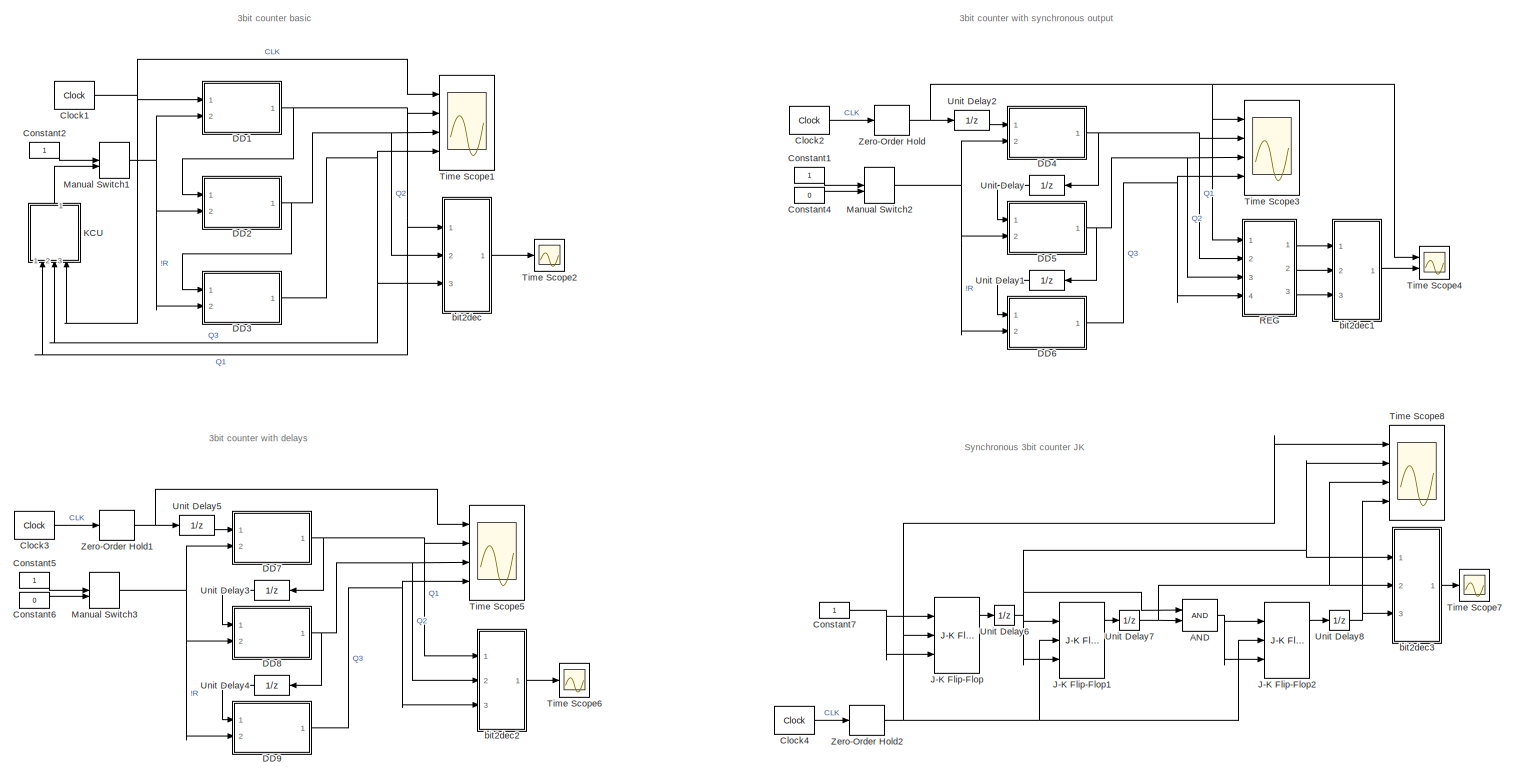
[diagram: root canvas - part 1/1, most of the canvas]
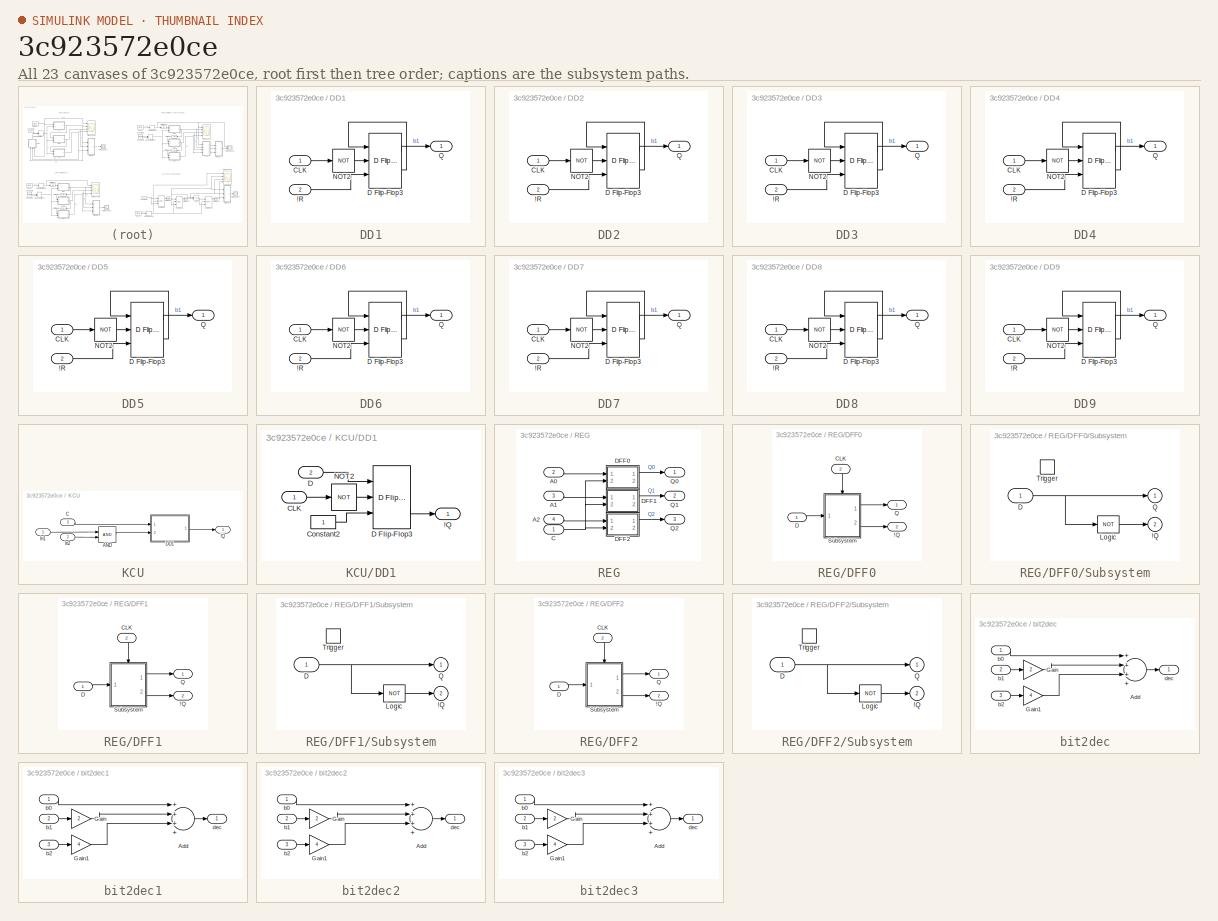
[diagram: thumbnail index - all 23 canvases of the model, root first then tree order]
MODEL slx_3c923572e0ce
KIND model
CONFIG AbsTol = auto
CONFIG EnableMultiTasking = off
CONFIG FixedStep = 1
CONFIG MaxStep = 1
CONFIG MinStep = auto
CONFIG RelTol = 1e-3
CONFIG SampleTimeConstraint = Unconstrained
CONFIG Solver = FixedStepAuto
CONFIG SolverName = FixedStepAuto
CONFIG StartTime = 0.0
CONFIG StopTime = 100
BLOCK [Logic] AND
  AllPortsSameDT = off
  IconShape = distinctive
  OutDataTypeStr = boolean
  Ports = [2, 1]
BLOCK [Reference] Clock1  REF=simulink_extras/Flip Flops/Clock
  Ports = [0, 1]
  SourceBlock = simulink_extras/Flip Flops/Clock
  SourceProductBaseCode = SL
  SourceProductName = Simulink
  SourceType = Digital clock
BLOCK [Reference] Clock2  REF=simulink_extras/Flip Flops/Clock
  Ports = [0, 1]
  SourceBlock = simulink_extras/Flip Flops/Clock
  SourceProductBaseCode = SL
  SourceProductName = Simulink
  SourceType = Digital clock
BLOCK [Reference] Clock3  REF=simulink_extras/Flip Flops/Clock
  Ports = [0, 1]
  SourceBlock = simulink_extras/Flip Flops/Clock
  SourceProductBaseCode = SL
  SourceProductName = Simulink
  SourceType = Digital clock
BLOCK [Reference] Clock4  REF=simulink_extras/Flip Flops/Clock
  Ports = [0, 1]
  SourceBlock = simulink_extras/Flip Flops/Clock
  SourceProductBaseCode = SL
  SourceProductName = Simulink
  SourceType = Digital clock
BLOCK [Constant] Constant1
  OutDataTypeStr = boolean
BLOCK [Constant] Constant2
  OutDataTypeStr = boolean
BLOCK [Constant] Constant4
  OutDataTypeStr = boolean
  Value = 0
BLOCK [Constant] Constant5
  OutDataTypeStr = boolean
BLOCK [Constant] Constant6
  OutDataTypeStr = boolean
  Value = 0
BLOCK [Constant] Constant7
  OutDataTypeStr = boolean
BLOCK [SubSystem] DD1
  Ports = [2, 1]
  RequestExecContextInheritance = off
BLOCK [Inport] DD1/!R
  IconDisplay = Port number
  Port = 2
BLOCK [Inport] DD1/CLK
  IconDisplay = Port number
BLOCK [Reference] DD1/D Flip-Flop3  REF=simulink_extras/Flip Flops/D Flip-Flop
  Ports = [3, 2]
  SourceBlock = simulink_extras/Flip Flops/D Flip-Flop
  SourceProductBaseCode = SL
  SourceProductName = Simulink
  SourceType = DFlipFlop
BLOCK [Logic] DD1/NOT2
  AllPortsSameDT = off
  IconShape = distinctive
  Operator = NOT
  OutDataTypeStr = boolean
  Ports = [1, 1]
BLOCK [Outport] DD1/Q
  IconDisplay = Port number
BLOCK [SubSystem] DD2
  Ports = [2, 1]
  RequestExecContextInheritance = off
BLOCK [Inport] DD2/!R
  IconDisplay = Port number
  Port = 2
BLOCK [Inport] DD2/CLK
  IconDisplay = Port number
BLOCK [Reference] DD2/D Flip-Flop3  REF=simulink_extras/Flip Flops/D Flip-Flop
  Ports = [3, 2]
  SourceBlock = simulink_extras/Flip Flops/D Flip-Flop
  SourceProductBaseCode = SL
  SourceProductName = Simulink
  SourceType = DFlipFlop
BLOCK [Logic] DD2/NOT2
  AllPortsSameDT = off
  IconShape = distinctive
  Operator = NOT
  OutDataTypeStr = boolean
  Ports = [1, 1]
BLOCK [Outport] DD2/Q
  IconDisplay = Port number
BLOCK [SubSystem] DD3
  Ports = [2, 1]
  RequestExecContextInheritance = off
BLOCK [Inport] DD3/!R
  IconDisplay = Port number
  Port = 2
BLOCK [Inport] DD3/CLK
  IconDisplay = Port number
BLOCK [Reference] DD3/D Flip-Flop3  REF=simulink_extras/Flip Flops/D Flip-Flop
  Ports = [3, 2]
  SourceBlock = simulink_extras/Flip Flops/D Flip-Flop
  SourceProductBaseCode = SL
  SourceProductName = Simulink
  SourceType = DFlipFlop
BLOCK [Logic] DD3/NOT2
  AllPortsSameDT = off
  IconShape = distinctive
  Operator = NOT
  OutDataTypeStr = boolean
  Ports = [1, 1]
BLOCK [Outport] DD3/Q
  IconDisplay = Port number
BLOCK [SubSystem] DD4
  Ports = [2, 1]
  RequestExecContextInheritance = off
BLOCK [Inport] DD4/!R
  IconDisplay = Port number
  Port = 2
BLOCK [Inport] DD4/CLK
  IconDisplay = Port number
BLOCK [Reference] DD4/D Flip-Flop3  REF=simulink_extras/Flip Flops/D Flip-Flop
  Ports = [3, 2]
  SourceBlock = simulink_extras/Flip Flops/D Flip-Flop
  SourceProductBaseCode = SL
  SourceProductName = Simulink
  SourceType = DFlipFlop
BLOCK [Logic] DD4/NOT2
  AllPortsSameDT = off
  IconShape = distinctive
  Operator = NOT
  OutDataTypeStr = boolean
  Ports = [1, 1]
BLOCK [Outport] DD4/Q
  IconDisplay = Port number
BLOCK [SubSystem] DD5
  Ports = [2, 1]
  RequestExecContextInheritance = off
BLOCK [Inport] DD5/!R
  IconDisplay = Port number
  Port = 2
BLOCK [Inport] DD5/CLK
  IconDisplay = Port number
BLOCK [Reference] DD5/D Flip-Flop3  REF=simulink_extras/Flip Flops/D Flip-Flop
  Ports = [3, 2]
  SourceBlock = simulink_extras/Flip Flops/D Flip-Flop
  SourceProductBaseCode = SL
  SourceProductName = Simulink
  SourceType = DFlipFlop
BLOCK [Logic] DD5/NOT2
  AllPortsSameDT = off
  IconShape = distinctive
  Operator = NOT
  OutDataTypeStr = boolean
  Ports = [1, 1]
BLOCK [Outport] DD5/Q
  IconDisplay = Port number
BLOCK [SubSystem] DD6
  Ports = [2, 1]
  RequestExecContextInheritance = off
BLOCK [Inport] DD6/!R
  IconDisplay = Port number
  Port = 2
BLOCK [Inport] DD6/CLK
  IconDisplay = Port number
BLOCK [Reference] DD6/D Flip-Flop3  REF=simulink_extras/Flip Flops/D Flip-Flop
  Ports = [3, 2]
  SourceBlock = simulink_extras/Flip Flops/D Flip-Flop
  SourceProductBaseCode = SL
  SourceProductName = Simulink
  SourceType = DFlipFlop
BLOCK [Logic] DD6/NOT2
  AllPortsSameDT = off
  IconShape = distinctive
  Operator = NOT
  OutDataTypeStr = boolean
  Ports = [1, 1]
BLOCK [Outport] DD6/Q
  IconDisplay = Port number
BLOCK [SubSystem] DD7
  Ports = [2, 1]
  RequestExecContextInheritance = off
BLOCK [Inport] DD7/!R
  IconDisplay = Port number
  Port = 2
BLOCK [Inport] DD7/CLK
  IconDisplay = Port number
BLOCK [Reference] DD7/D Flip-Flop3  REF=simulink_extras/Flip Flops/D Flip-Flop
  Ports = [3, 2]
  SourceBlock = simulink_extras/Flip Flops/D Flip-Flop
  SourceProductBaseCode = SL
  SourceProductName = Simulink
  SourceType = DFlipFlop
BLOCK [Logic] DD7/NOT2
  AllPortsSameDT = off
  IconShape = distinctive
  Operator = NOT
  OutDataTypeStr = boolean
  Ports = [1, 1]
BLOCK [Outport] DD7/Q
  IconDisplay = Port number
BLOCK [SubSystem] DD8
  Ports = [2, 1]
  RequestExecContextInheritance = off
BLOCK [Inport] DD8/!R
  IconDisplay = Port number
  Port = 2
BLOCK [Inport] DD8/CLK
  IconDisplay = Port number
BLOCK [Reference] DD8/D Flip-Flop3  REF=simulink_extras/Flip Flops/D Flip-Flop
  Ports = [3, 2]
  SourceBlock = simulink_extras/Flip Flops/D Flip-Flop
  SourceProductBaseCode = SL
  SourceProductName = Simulink
  SourceType = DFlipFlop
BLOCK [Logic] DD8/NOT2
  AllPortsSameDT = off
  IconShape = distinctive
  Operator = NOT
  OutDataTypeStr = boolean
  Ports = [1, 1]
BLOCK [Outport] DD8/Q
  IconDisplay = Port number
BLOCK [SubSystem] DD9
  Ports = [2, 1]
  RequestExecContextInheritance = off
BLOCK [Inport] DD9/!R
  IconDisplay = Port number
  Port = 2
BLOCK [Inport] DD9/CLK
  IconDisplay = Port number
BLOCK [Reference] DD9/D Flip-Flop3  REF=simulink_extras/Flip Flops/D Flip-Flop
  Ports = [3, 2]
  SourceBlock = simulink_extras/Flip Flops/D Flip-Flop
  SourceProductBaseCode = SL
  SourceProductName = Simulink
  SourceType = DFlipFlop
BLOCK [Logic] DD9/NOT2
  AllPortsSameDT = off
  IconShape = distinctive
  Operator = NOT
  OutDataTypeStr = boolean
  Ports = [1, 1]
BLOCK [Outport] DD9/Q
  IconDisplay = Port number
BLOCK [Reference] J-K Flip-Flop  REF=simulink_extras/Flip Flops/J-K
Flip-Flop
  Ports = [3, 2]
  SourceBlock = simulink_extras/Flip Flops/J-K\nFlip-Flop
  SourceProductBaseCode = SL
  SourceProductName = Simulink
  SourceType = JKFlipFlop
BLOCK [Reference] J-K Flip-Flop1  REF=simulink_extras/Flip Flops/J-K
Flip-Flop
  Ports = [3, 2]
  SourceBlock = simulink_extras/Flip Flops/J-K\nFlip-Flop
  SourceProductBaseCode = SL
  SourceProductName = Simulink
  SourceType = JKFlipFlop
BLOCK [Reference] J-K Flip-Flop2  REF=simulink_extras/Flip Flops/J-K
Flip-Flop
  Ports = [3, 2]
  SourceBlock = simulink_extras/Flip Flops/J-K\nFlip-Flop
  SourceProductBaseCode = SL
  SourceProductName = Simulink
  SourceType = JKFlipFlop
BLOCK [SubSystem] KCU
  Ports = [3, 1]
  RequestExecContextInheritance = off
BLOCK [Outport] KCU/!Q
  IconDisplay = Port number
BLOCK [Logic] KCU/AND
  AllPortsSameDT = off
  IconShape = distinctive
  OutDataTypeStr = boolean
  Ports = [2, 1]
BLOCK [Inport] KCU/C
  IconDisplay = Port number
  Port = 3
BLOCK [SubSystem] KCU/DD1
  Ports = [2, 1]
  RequestExecContextInheritance = off
BLOCK [Outport] KCU/DD1/!Q
  IconDisplay = Port number
BLOCK [Inport] KCU/DD1/CLK
  IconDisplay = Port number
BLOCK [Constant] KCU/DD1/Constant2
  OutDataTypeStr = boolean
BLOCK [Inport] KCU/DD1/D
  IconDisplay = Port number
  Port = 2
BLOCK [Reference] KCU/DD1/D Flip-Flop3  REF=simulink_extras/Flip Flops/D Flip-Flop
  Ports = [3, 2]
  SourceBlock = simulink_extras/Flip Flops/D Flip-Flop
  SourceProductBaseCode = SL
  SourceProductName = Simulink
  SourceType = DFlipFlop
BLOCK [Logic] KCU/DD1/NOT2
  AllPortsSameDT = off
  IconShape = distinctive
  Operator = NOT
  OutDataTypeStr = boolean
  Ports = [1, 1]
BLOCK [Inport] KCU/In1
  IconDisplay = Port number
BLOCK [Inport] KCU/In2
  IconDisplay = Port number
  Port = 2
BLOCK [ManualSwitch] Manual Switch1
  CurrentSetting = 0
BLOCK [ManualSwitch] Manual Switch2
BLOCK [ManualSwitch] Manual Switch3
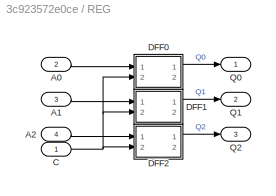
BLOCK [SubSystem] REG
  Ports = [4, 3]
  RequestExecContextInheritance = off
BLOCK [Inport] REG/A0
  IconDisplay = Port number
  Port = 2
BLOCK [Inport] REG/A1
  IconDisplay = Port number
  Port = 3
BLOCK [Inport] REG/A2
  IconDisplay = Port number
  Port = 4
BLOCK [Inport] REG/C
  IconDisplay = Port number
BLOCK [SubSystem] REG/DFF0
  Ports = [2, 2]
  RequestExecContextInheritance = off
BLOCK [Outport] REG/DFF0/!Q
  IconDisplay = Port number
  InitialOutput = 1
  Port = 2
  VectorParamsAs1DForOutWhenUnconnected = off
BLOCK [Inport] REG/DFF0/CLK
  IconDisplay = Port number
  Port = 2
BLOCK [Inport] REG/DFF0/D
  IconDisplay = Port number
BLOCK [Outport] REG/DFF0/Q
  IconDisplay = Port number
  InitialOutput = 0
  VectorParamsAs1DForOutWhenUnconnected = off
BLOCK [SubSystem] REG/DFF0/Subsystem
  Ports = [1, 2, 0, 1]
  RequestExecContextInheritance = off
BLOCK [Outport] REG/DFF0/Subsystem/!Q
  IconDisplay = Port number
  InitialOutput = 1
  OutputWhenDisabled = reset
  Port = 2
  VectorParamsAs1DForOutWhenUnconnected = off
BLOCK [Inport] REG/DFF0/Subsystem/D
  IconDisplay = Port number
  LatchByDelayingOutsideSignal = on
BLOCK [Logic] REG/DFF0/Subsystem/Logic
  Inputs = 1
  Operator = NOT
  Ports = [1, 1]
BLOCK [Outport] REG/DFF0/Subsystem/Q
  IconDisplay = Port number
  InitialOutput = 0
  OutputWhenDisabled = reset
  VectorParamsAs1DForOutWhenUnconnected = off
BLOCK [TriggerPort] REG/DFF0/Subsystem/Trigger
  Ports = []
  StatesWhenEnabling = reset
  VariantControl = Variant
BLOCK [SubSystem] REG/DFF1
  Ports = [2, 2]
  RequestExecContextInheritance = off
BLOCK [Outport] REG/DFF1/!Q
  IconDisplay = Port number
  InitialOutput = 1
  Port = 2
  VectorParamsAs1DForOutWhenUnconnected = off
BLOCK [Inport] REG/DFF1/CLK
  IconDisplay = Port number
  Port = 2
BLOCK [Inport] REG/DFF1/D
  IconDisplay = Port number
BLOCK [Outport] REG/DFF1/Q
  IconDisplay = Port number
  InitialOutput = 0
  VectorParamsAs1DForOutWhenUnconnected = off
BLOCK [SubSystem] REG/DFF1/Subsystem
  Ports = [1, 2, 0, 1]
  RequestExecContextInheritance = off
BLOCK [Outport] REG/DFF1/Subsystem/!Q
  IconDisplay = Port number
  InitialOutput = 1
  OutputWhenDisabled = reset
  Port = 2
  VectorParamsAs1DForOutWhenUnconnected = off
BLOCK [Inport] REG/DFF1/Subsystem/D
  IconDisplay = Port number
  LatchByDelayingOutsideSignal = on
BLOCK [Logic] REG/DFF1/Subsystem/Logic
  Inputs = 1
  Operator = NOT
  Ports = [1, 1]
BLOCK [Outport] REG/DFF1/Subsystem/Q
  IconDisplay = Port number
  InitialOutput = 0
  OutputWhenDisabled = reset
  VectorParamsAs1DForOutWhenUnconnected = off
BLOCK [TriggerPort] REG/DFF1/Subsystem/Trigger
  Ports = []
  StatesWhenEnabling = reset
  VariantControl = Variant
BLOCK [SubSystem] REG/DFF2
  Ports = [2, 2]
  RequestExecContextInheritance = off
BLOCK [Outport] REG/DFF2/!Q
  IconDisplay = Port number
  InitialOutput = 1
  Port = 2
  VectorParamsAs1DForOutWhenUnconnected = off
BLOCK [Inport] REG/DFF2/CLK
  IconDisplay = Port number
  Port = 2
BLOCK [Inport] REG/DFF2/D
  IconDisplay = Port number
BLOCK [Outport] REG/DFF2/Q
  IconDisplay = Port number
  InitialOutput = 0
  VectorParamsAs1DForOutWhenUnconnected = off
BLOCK [SubSystem] REG/DFF2/Subsystem
  Ports = [1, 2, 0, 1]
  RequestExecContextInheritance = off
BLOCK [Outport] REG/DFF2/Subsystem/!Q
  IconDisplay = Port number
  InitialOutput = 1
  OutputWhenDisabled = reset
  Port = 2
  VectorParamsAs1DForOutWhenUnconnected = off
BLOCK [Inport] REG/DFF2/Subsystem/D
  IconDisplay = Port number
  LatchByDelayingOutsideSignal = on
BLOCK [Logic] REG/DFF2/Subsystem/Logic
  Inputs = 1
  Operator = NOT
  Ports = [1, 1]
BLOCK [Outport] REG/DFF2/Subsystem/Q
  IconDisplay = Port number
  InitialOutput = 0
  OutputWhenDisabled = reset
  VectorParamsAs1DForOutWhenUnconnected = off
BLOCK [TriggerPort] REG/DFF2/Subsystem/Trigger
  Ports = []
  StatesWhenEnabling = reset
  VariantControl = Variant
BLOCK [Outport] REG/Q0
  IconDisplay = Port number
BLOCK [Outport] REG/Q1
  IconDisplay = Port number
  Port = 2
BLOCK [Outport] REG/Q2
  IconDisplay = Port number
  Port = 3
BLOCK [Scope] Time Scope1
  DefaultConfigurationName = spbscopes.TimeScopeBlockCfg
  Floating = off
  NumInputPorts = 4
  Ports = [4]
  ScopeSpecificationString = spbscopes.TimeScopeBlockCfg('CurrentConfiguration', extmgr.ConfigurationSet(extmgr.Configuration('Core','General UI',true),extmgr.Configuration('Core','Source UI',true),extmgr.Configuration('Sources','WiredSimulink',true,'DataLoggingVariableName','ScopeData1'),extmgr.Configuration('Visuals','Time Domain',true,'DisplayLayoutDimensions',[4 1],'DisplayPropertyDefaults',struct('YLabelReal','Amplitude'...<+3419ch>
  UserDataPersistent = on
BLOCK [Scope] Time Scope2
  DefaultConfigurationName = spbscopes.TimeScopeBlockCfg
  Floating = off
  NumInputPorts = 1
  Ports = [1]
  ScopeSpecificationString = spbscopes.TimeScopeBlockCfg('CurrentConfiguration', extmgr.ConfigurationSet(extmgr.Configuration('Core','General UI',true),extmgr.Configuration('Core','Source UI',true),extmgr.Configuration('Sources','WiredSimulink',true,'DataLoggingVariableName','ScopeData2'),extmgr.Configuration('Visuals','Time Domain',true,'DisplayPropertyDefaults',struct('MinYLimReal','-0.625','MaxYLimReal','5.625','YLabelReal...<+1421ch>
  UserDataPersistent = on
BLOCK [Scope] Time Scope3
  DefaultConfigurationName = spbscopes.TimeScopeBlockCfg
  Floating = off
  NumInputPorts = 4
  Ports = [4]
  ScopeSpecificationString = spbscopes.TimeScopeBlockCfg('CurrentConfiguration', extmgr.ConfigurationSet(extmgr.Configuration('Core','General UI',true),extmgr.Configuration('Core','Source UI',true),extmgr.Configuration('Sources','WiredSimulink',true),extmgr.Configuration('Visuals','Time Domain',true,'DisplayLayoutDimensions',[4 1],'DisplayPropertyDefaults',struct('YLabelReal','Amplitude','AxesColor',[0 0 0],'ColorOrder',[1 1 ...<+3392ch>
  UserDataPersistent = on
BLOCK [Scope] Time Scope4
  DefaultConfigurationName = spbscopes.TimeScopeBlockCfg
  Floating = off
  NumInputPorts = 2
  Ports = [2]
  ScopeSpecificationString = spbscopes.TimeScopeBlockCfg('CurrentConfiguration', extmgr.ConfigurationSet(extmgr.Configuration('Core','General UI',true),extmgr.Configuration('Core','Source UI',true),extmgr.Configuration('Sources','WiredSimulink',true,'DataLoggingVariableName','ScopeData3'),extmgr.Configuration('Visuals','Time Domain',true,'DisplayLayoutDimensions',[2 1],'DisplayPropertyDefaults',struct('YLabelReal','Amplitude'...<+2123ch>
  UserDataPersistent = on
BLOCK [Scope] Time Scope5
  DefaultConfigurationName = spbscopes.TimeScopeBlockCfg
  Floating = off
  NumInputPorts = 4
  Ports = [4]
  ScopeSpecificationString = spbscopes.TimeScopeBlockCfg('CurrentConfiguration', extmgr.ConfigurationSet(extmgr.Configuration('Core','General UI',true),extmgr.Configuration('Core','Source UI',true),extmgr.Configuration('Sources','WiredSimulink',true,'DataLoggingVariableName','ScopeData4'),extmgr.Configuration('Visuals','Time Domain',true,'DisplayLayoutDimensions',[4 1],'DisplayPropertyDefaults',struct('YLabelReal','Amplitude'...<+3446ch>
  UserDataPersistent = on
BLOCK [Scope] Time Scope6
  DefaultConfigurationName = spbscopes.TimeScopeBlockCfg
  Floating = off
  NumInputPorts = 1
  Ports = [1]
  ScopeSpecificationString = spbscopes.TimeScopeBlockCfg('CurrentConfiguration', extmgr.ConfigurationSet(extmgr.Configuration('Core','General UI',true),extmgr.Configuration('Core','Source UI',true),extmgr.Configuration('Sources','WiredSimulink',true,'DataLoggingVariableName','ScopeData5'),extmgr.Configuration('Visuals','Time Domain',true,'DisplayPropertyDefaults',struct('MinYLimReal','-0.875','MaxYLimReal','7.875','YLabelReal...<+1476ch>
  UserDataPersistent = on
BLOCK [Scope] Time Scope7
  DefaultConfigurationName = spbscopes.TimeScopeBlockCfg
  Floating = off
  NumInputPorts = 1
  Ports = [1]
  ScopeSpecificationString = spbscopes.TimeScopeBlockCfg('CurrentConfiguration', extmgr.ConfigurationSet(extmgr.Configuration('Core','General UI',true),extmgr.Configuration('Core','Source UI',true),extmgr.Configuration('Sources','WiredSimulink',true,'DataLoggingVariableName','ScopeData6'),extmgr.Configuration('Visuals','Time Domain',true,'DisplayPropertyDefaults',struct('MinYLimReal','-0.875','MaxYLimReal','7.875','YLabelReal...<+1422ch>
  UserDataPersistent = on
BLOCK [Scope] Time Scope8
  DefaultConfigurationName = spbscopes.TimeScopeBlockCfg
  Floating = off
  NumInputPorts = 4
  Ports = [4]
  ScopeSpecificationString = spbscopes.TimeScopeBlockCfg('CurrentConfiguration', extmgr.ConfigurationSet(extmgr.Configuration('Core','General UI',true),extmgr.Configuration('Core','Source UI',true),extmgr.Configuration('Sources','WiredSimulink',true,'DataLoggingVariableName','ScopeData7'),extmgr.Configuration('Visuals','Time Domain',true,'DisplayLayoutDimensions',[4 1],'DisplayPropertyDefaults',struct('YLabelReal','Amplitude'...<+3444ch>
  UserDataPersistent = on
BLOCK [UnitDelay] Unit Delay
  HasFrameUpgradeWarning = on
  SampleTime = -1
BLOCK [UnitDelay] Unit Delay1
  HasFrameUpgradeWarning = on
  SampleTime = -1
BLOCK [UnitDelay] Unit Delay2
  HasFrameUpgradeWarning = on
  SampleTime = -1
BLOCK [UnitDelay] Unit Delay3
  HasFrameUpgradeWarning = on
  SampleTime = -1
BLOCK [UnitDelay] Unit Delay4
  HasFrameUpgradeWarning = on
  SampleTime = -1
BLOCK [UnitDelay] Unit Delay5
  HasFrameUpgradeWarning = on
  SampleTime = -1
BLOCK [UnitDelay] Unit Delay6
  HasFrameUpgradeWarning = on
  SampleTime = -1
BLOCK [UnitDelay] Unit Delay7
  HasFrameUpgradeWarning = on
  SampleTime = -1
BLOCK [UnitDelay] Unit Delay8
  HasFrameUpgradeWarning = on
  SampleTime = -1
BLOCK [ZeroOrderHold] Zero-Order Hold
BLOCK [ZeroOrderHold] Zero-Order Hold1
BLOCK [ZeroOrderHold] Zero-Order Hold2
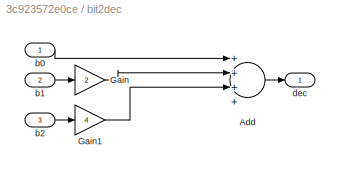
BLOCK [SubSystem] bit2dec
  Ports = [3, 1]
  RequestExecContextInheritance = off
BLOCK [Sum] bit2dec/Add
  InputSameDT = off
  Inputs = ++++
  OutDataTypeStr = Inherit: Inherit via internal rule
  Ports = [4, 1]
  SaturateOnIntegerOverflow = off
BLOCK [Gain] bit2dec/Gain
  Gain = 2
  OutDataTypeStr = Inherit: Inherit via internal rule
  ParamDataTypeStr = Inherit: Inherit via internal rule
  SaturateOnIntegerOverflow = off
BLOCK [Gain] bit2dec/Gain1
  Gain = 4
  OutDataTypeStr = Inherit: Inherit via internal rule
  ParamDataTypeStr = Inherit: Inherit via internal rule
  SaturateOnIntegerOverflow = off
BLOCK [Inport] bit2dec/b0
  IconDisplay = Port number
BLOCK [Inport] bit2dec/b1
  IconDisplay = Port number
  Port = 2
BLOCK [Inport] bit2dec/b2
  IconDisplay = Port number
  Port = 3
BLOCK [Outport] bit2dec/dec
  IconDisplay = Port number
BLOCK [SubSystem] bit2dec1
  Ports = [3, 1]
  RequestExecContextInheritance = off
BLOCK [Sum] bit2dec1/Add
  InputSameDT = off
  Inputs = ++++
  OutDataTypeStr = Inherit: Inherit via internal rule
  Ports = [4, 1]
  SaturateOnIntegerOverflow = off
BLOCK [Gain] bit2dec1/Gain
  Gain = 2
  OutDataTypeStr = Inherit: Inherit via internal rule
  ParamDataTypeStr = Inherit: Inherit via internal rule
  SaturateOnIntegerOverflow = off
BLOCK [Gain] bit2dec1/Gain1
  Gain = 4
  OutDataTypeStr = Inherit: Inherit via internal rule
  ParamDataTypeStr = Inherit: Inherit via internal rule
  SaturateOnIntegerOverflow = off
BLOCK [Inport] bit2dec1/b0
  IconDisplay = Port number
BLOCK [Inport] bit2dec1/b1
  IconDisplay = Port number
  Port = 2
BLOCK [Inport] bit2dec1/b2
  IconDisplay = Port number
  Port = 3
BLOCK [Outport] bit2dec1/dec
  IconDisplay = Port number
BLOCK [SubSystem] bit2dec2
  Ports = [3, 1]
  RequestExecContextInheritance = off
BLOCK [Sum] bit2dec2/Add
  InputSameDT = off
  Inputs = ++++
  OutDataTypeStr = Inherit: Inherit via internal rule
  Ports = [4, 1]
  SaturateOnIntegerOverflow = off
BLOCK [Gain] bit2dec2/Gain
  Gain = 2
  OutDataTypeStr = Inherit: Inherit via internal rule
  ParamDataTypeStr = Inherit: Inherit via internal rule
  SaturateOnIntegerOverflow = off
BLOCK [Gain] bit2dec2/Gain1
  Gain = 4
  OutDataTypeStr = Inherit: Inherit via internal rule
  ParamDataTypeStr = Inherit: Inherit via internal rule
  SaturateOnIntegerOverflow = off
BLOCK [Inport] bit2dec2/b0
  IconDisplay = Port number
BLOCK [Inport] bit2dec2/b1
  IconDisplay = Port number
  Port = 2
BLOCK [Inport] bit2dec2/b2
  IconDisplay = Port number
  Port = 3
BLOCK [Outport] bit2dec2/dec
  IconDisplay = Port number
BLOCK [SubSystem] bit2dec3
  Ports = [3, 1]
  RequestExecContextInheritance = off
BLOCK [Sum] bit2dec3/Add
  InputSameDT = off
  Inputs = ++++
  OutDataTypeStr = Inherit: Inherit via internal rule
  Ports = [4, 1]
  SaturateOnIntegerOverflow = off
BLOCK [Gain] bit2dec3/Gain
  Gain = 2
  OutDataTypeStr = Inherit: Inherit via internal rule
  ParamDataTypeStr = Inherit: Inherit via internal rule
  SaturateOnIntegerOverflow = off
BLOCK [Gain] bit2dec3/Gain1
  Gain = 4
  OutDataTypeStr = Inherit: Inherit via internal rule
  ParamDataTypeStr = Inherit: Inherit via internal rule
  SaturateOnIntegerOverflow = off
BLOCK [Inport] bit2dec3/b0
  IconDisplay = Port number
BLOCK [Inport] bit2dec3/b1
  IconDisplay = Port number
  Port = 2
BLOCK [Inport] bit2dec3/b2
  IconDisplay = Port number
  Port = 3
BLOCK [Outport] bit2dec3/dec
  IconDisplay = Port number
ANNOTATION (root): 3bit counter basic
ANNOTATION (root): 3bit counter with delays
ANNOTATION (root): 3bit counter with synchronous output
ANNOTATION (root): Synchronous 3bit counter JK
NET AND:1 -> J-K Flip-Flop2:1, J-K Flip-Flop2:3
NET Clock1:1 -> DD1:1, KCU:3, Time Scope1:1
LINE Clock2:1 -> Zero-Order Hold:1
LINE Clock3:1 -> Zero-Order Hold1:1
LINE Clock4:1 -> Zero-Order Hold2:1
LINE Constant1:1 -> Manual Switch2:1
LINE Constant2:1 -> Manual Switch1:1
LINE Constant4:1 -> Manual Switch2:2
LINE Constant5:1 -> Manual Switch3:1
LINE Constant6:1 -> Manual Switch3:2
NET Constant7:1 -> J-K Flip-Flop:1, J-K Flip-Flop:3
LINE DD1/!R:1 -> DD1/D Flip-Flop3:3
LINE DD1/CLK:1 -> DD1/NOT2:1
LINE DD1/D Flip-Flop3:1 -> DD1/Q:1
LINE DD1/D Flip-Flop3:2 -> DD1/D Flip-Flop3:1
LINE DD1/NOT2:1 -> DD1/D Flip-Flop3:2
NET DD1:1 -> DD2:1, KCU:1, Time Scope1:2, bit2dec:1
LINE DD2/!R:1 -> DD2/D Flip-Flop3:3
LINE DD2/CLK:1 -> DD2/NOT2:1
LINE DD2/D Flip-Flop3:1 -> DD2/Q:1
LINE DD2/D Flip-Flop3:2 -> DD2/D Flip-Flop3:1
LINE DD2/NOT2:1 -> DD2/D Flip-Flop3:2
NET DD2:1 -> DD3:1, Time Scope1:3, bit2dec:2
LINE DD3/!R:1 -> DD3/D Flip-Flop3:3
LINE DD3/CLK:1 -> DD3/NOT2:1
LINE DD3/D Flip-Flop3:1 -> DD3/Q:1
LINE DD3/D Flip-Flop3:2 -> DD3/D Flip-Flop3:1
LINE DD3/NOT2:1 -> DD3/D Flip-Flop3:2
NET DD3:1 -> KCU:2, Time Scope1:4, bit2dec:3
LINE DD4/!R:1 -> DD4/D Flip-Flop3:3
LINE DD4/CLK:1 -> DD4/NOT2:1
LINE DD4/D Flip-Flop3:1 -> DD4/Q:1
LINE DD4/D Flip-Flop3:2 -> DD4/D Flip-Flop3:1
LINE DD4/NOT2:1 -> DD4/D Flip-Flop3:2
NET DD4:1 -> REG:2, Time Scope3:2, Unit Delay:1
LINE DD5/!R:1 -> DD5/D Flip-Flop3:3
LINE DD5/CLK:1 -> DD5/NOT2:1
LINE DD5/D Flip-Flop3:1 -> DD5/Q:1
LINE DD5/D Flip-Flop3:2 -> DD5/D Flip-Flop3:1
LINE DD5/NOT2:1 -> DD5/D Flip-Flop3:2
NET DD5:1 -> REG:3, Time Scope3:3, Unit Delay1:1
LINE DD6/!R:1 -> DD6/D Flip-Flop3:3
LINE DD6/CLK:1 -> DD6/NOT2:1
LINE DD6/D Flip-Flop3:1 -> DD6/Q:1
LINE DD6/D Flip-Flop3:2 -> DD6/D Flip-Flop3:1
LINE DD6/NOT2:1 -> DD6/D Flip-Flop3:2
NET DD6:1 -> REG:4, Time Scope3:4
LINE DD7/!R:1 -> DD7/D Flip-Flop3:3
LINE DD7/CLK:1 -> DD7/NOT2:1
LINE DD7/D Flip-Flop3:1 -> DD7/Q:1
LINE DD7/D Flip-Flop3:2 -> DD7/D Flip-Flop3:1
LINE DD7/NOT2:1 -> DD7/D Flip-Flop3:2
NET DD7:1 -> Time Scope5:2, Unit Delay3:1, bit2dec2:1
LINE DD8/!R:1 -> DD8/D Flip-Flop3:3
LINE DD8/CLK:1 -> DD8/NOT2:1
LINE DD8/D Flip-Flop3:1 -> DD8/Q:1
LINE DD8/D Flip-Flop3:2 -> DD8/D Flip-Flop3:1
LINE DD8/NOT2:1 -> DD8/D Flip-Flop3:2
NET DD8:1 -> Time Scope5:3, Unit Delay4:1, bit2dec2:2
LINE DD9/!R:1 -> DD9/D Flip-Flop3:3
LINE DD9/CLK:1 -> DD9/NOT2:1
LINE DD9/D Flip-Flop3:1 -> DD9/Q:1
LINE DD9/D Flip-Flop3:2 -> DD9/D Flip-Flop3:1
LINE DD9/NOT2:1 -> DD9/D Flip-Flop3:2
NET DD9:1 -> Time Scope5:4, bit2dec2:3
LINE J-K Flip-Flop1:1 -> Unit Delay7:1
LINE J-K Flip-Flop2:1 -> Unit Delay8:1
LINE J-K Flip-Flop:1 -> Unit Delay6:1
LINE KCU/AND:1 -> KCU/DD1:2
LINE KCU/C:1 -> KCU/DD1:1
LINE KCU/DD1/CLK:1 -> KCU/DD1/NOT2:1
LINE KCU/DD1/Constant2:1 -> KCU/DD1/D Flip-Flop3:3
LINE KCU/DD1/D Flip-Flop3:2 -> KCU/DD1/!Q:1
LINE KCU/DD1/D:1 -> KCU/DD1/D Flip-Flop3:1
LINE KCU/DD1/NOT2:1 -> KCU/DD1/D Flip-Flop3:2
LINE KCU/DD1:1 -> KCU/!Q:1
LINE KCU/In1:1 -> KCU/AND:1
LINE KCU/In2:1 -> KCU/AND:2
LINE KCU:1 -> Manual Switch1:2
NET Manual Switch1:1 -> DD1:2, DD2:2, DD3:2
NET Manual Switch2:1 -> DD4:2, DD5:2, DD6:2
NET Manual Switch3:1 -> DD7:2, DD8:2, DD9:2
LINE REG/A0:1 -> REG/DFF0:1
LINE REG/A1:1 -> REG/DFF1:1
LINE REG/A2:1 -> REG/DFF2:1
NET REG/C:1 -> REG/DFF0:2, REG/DFF1:2, REG/DFF2:2
LINE REG/DFF0/CLK:1 -> REG/DFF0/Subsystem:trigger
LINE REG/DFF0/D:1 -> REG/DFF0/Subsystem:1
NET REG/DFF0/Subsystem/D:1 -> REG/DFF0/Subsystem/Logic:1, REG/DFF0/Subsystem/Q:1
LINE REG/DFF0/Subsystem/Logic:1 -> REG/DFF0/Subsystem/!Q:1
LINE REG/DFF0/Subsystem:1 -> REG/DFF0/Q:1
LINE REG/DFF0/Subsystem:2 -> REG/DFF0/!Q:1
LINE REG/DFF0:1 -> REG/Q0:1
LINE REG/DFF1/CLK:1 -> REG/DFF1/Subsystem:trigger
LINE REG/DFF1/D:1 -> REG/DFF1/Subsystem:1
NET REG/DFF1/Subsystem/D:1 -> REG/DFF1/Subsystem/Logic:1, REG/DFF1/Subsystem/Q:1
LINE REG/DFF1/Subsystem/Logic:1 -> REG/DFF1/Subsystem/!Q:1
LINE REG/DFF1/Subsystem:1 -> REG/DFF1/Q:1
LINE REG/DFF1/Subsystem:2 -> REG/DFF1/!Q:1
LINE REG/DFF1:1 -> REG/Q1:1
LINE REG/DFF2/CLK:1 -> REG/DFF2/Subsystem:trigger
LINE REG/DFF2/D:1 -> REG/DFF2/Subsystem:1
NET REG/DFF2/Subsystem/D:1 -> REG/DFF2/Subsystem/Logic:1, REG/DFF2/Subsystem/Q:1
LINE REG/DFF2/Subsystem/Logic:1 -> REG/DFF2/Subsystem/!Q:1
LINE REG/DFF2/Subsystem:1 -> REG/DFF2/Q:1
LINE REG/DFF2/Subsystem:2 -> REG/DFF2/!Q:1
LINE REG/DFF2:1 -> REG/Q2:1
LINE REG:1 -> bit2dec1:1
LINE REG:2 -> bit2dec1:2
LINE REG:3 -> bit2dec1:3
LINE Unit Delay1:1 -> DD6:1
LINE Unit Delay2:1 -> DD4:1
LINE Unit Delay3:1 -> DD8:1
LINE Unit Delay4:1 -> DD9:1
LINE Unit Delay5:1 -> DD7:1
NET Unit Delay6:1 -> AND:1, J-K Flip-Flop1:1, J-K Flip-Flop1:3, Time Scope8:2, bit2dec3:1
NET Unit Delay7:1 -> AND:2, Time Scope8:3, bit2dec3:2
NET Unit Delay8:1 -> Time Scope8:4, bit2dec3:3
LINE Unit Delay:1 -> DD5:1
NET Zero-Order Hold1:1 -> Time Scope5:1, Unit Delay5:1
NET Zero-Order Hold2:1 -> J-K Flip-Flop1:2, J-K Flip-Flop2:2, J-K Flip-Flop:2, Time Scope8:1
NET Zero-Order Hold:1 -> REG:1, Time Scope3:1, Time Scope4:1, Unit Delay2:1
LINE bit2dec/Add:1 -> bit2dec/dec:1
LINE bit2dec/Gain1:1 -> bit2dec/Add:3
LINE bit2dec/Gain:1 -> bit2dec/Add:2
LINE bit2dec/b0:1 -> bit2dec/Add:1
LINE bit2dec/b1:1 -> bit2dec/Gain:1
LINE bit2dec/b2:1 -> bit2dec/Gain1:1
LINE bit2dec1/Add:1 -> bit2dec1/dec:1
LINE bit2dec1/Gain1:1 -> bit2dec1/Add:3
LINE bit2dec1/Gain:1 -> bit2dec1/Add:2
LINE bit2dec1/b0:1 -> bit2dec1/Add:1
LINE bit2dec1/b1:1 -> bit2dec1/Gain:1
LINE bit2dec1/b2:1 -> bit2dec1/Gain1:1
LINE bit2dec1:1 -> Time Scope4:2
LINE bit2dec2/Add:1 -> bit2dec2/dec:1
LINE bit2dec2/Gain1:1 -> bit2dec2/Add:3
LINE bit2dec2/Gain:1 -> bit2dec2/Add:2
LINE bit2dec2/b0:1 -> bit2dec2/Add:1
LINE bit2dec2/b1:1 -> bit2dec2/Gain:1
LINE bit2dec2/b2:1 -> bit2dec2/Gain1:1
LINE bit2dec2:1 -> Time Scope6:1
LINE bit2dec3/Add:1 -> bit2dec3/dec:1
LINE bit2dec3/Gain1:1 -> bit2dec3/Add:3
LINE bit2dec3/Gain:1 -> bit2dec3/Add:2
LINE bit2dec3/b0:1 -> bit2dec3/Add:1
LINE bit2dec3/b1:1 -> bit2dec3/Gain:1
LINE bit2dec3/b2:1 -> bit2dec3/Gain1:1
LINE bit2dec3:1 -> Time Scope7:1
LINE bit2dec:1 -> Time Scope2:1
note: NET lines group one-source signal fan-out (src -> all destinations, sorted); 1:1 wires keep LINE
